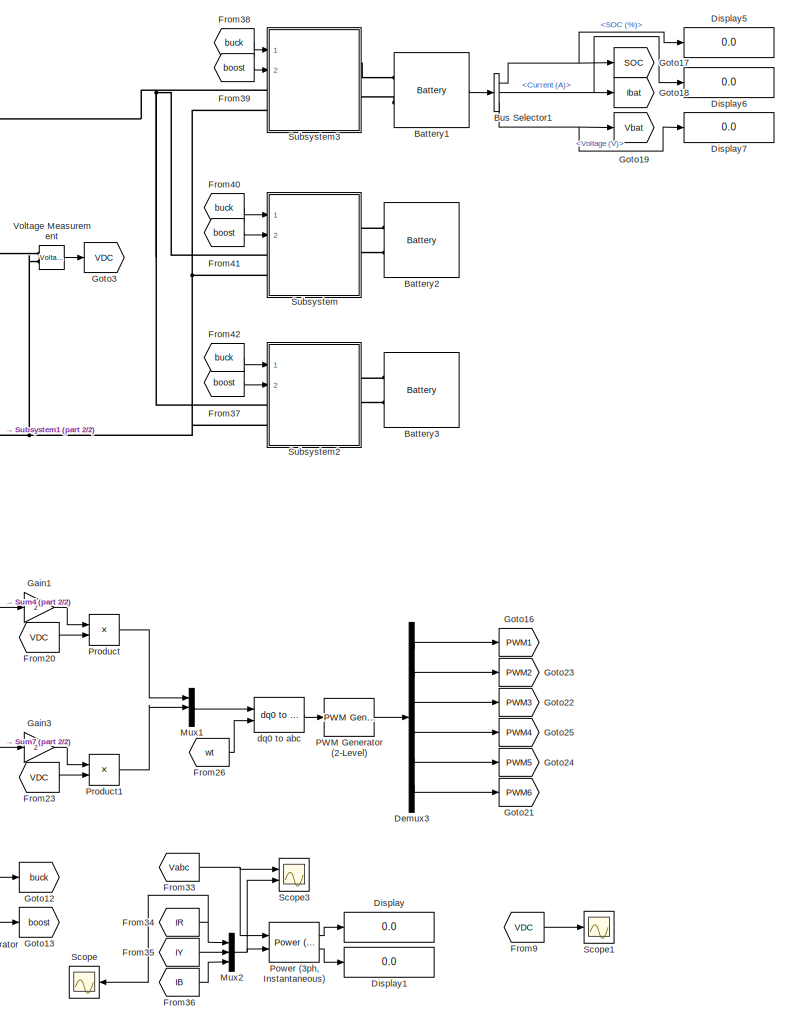
[diagram: root canvas - part 1/2, right side, full height]
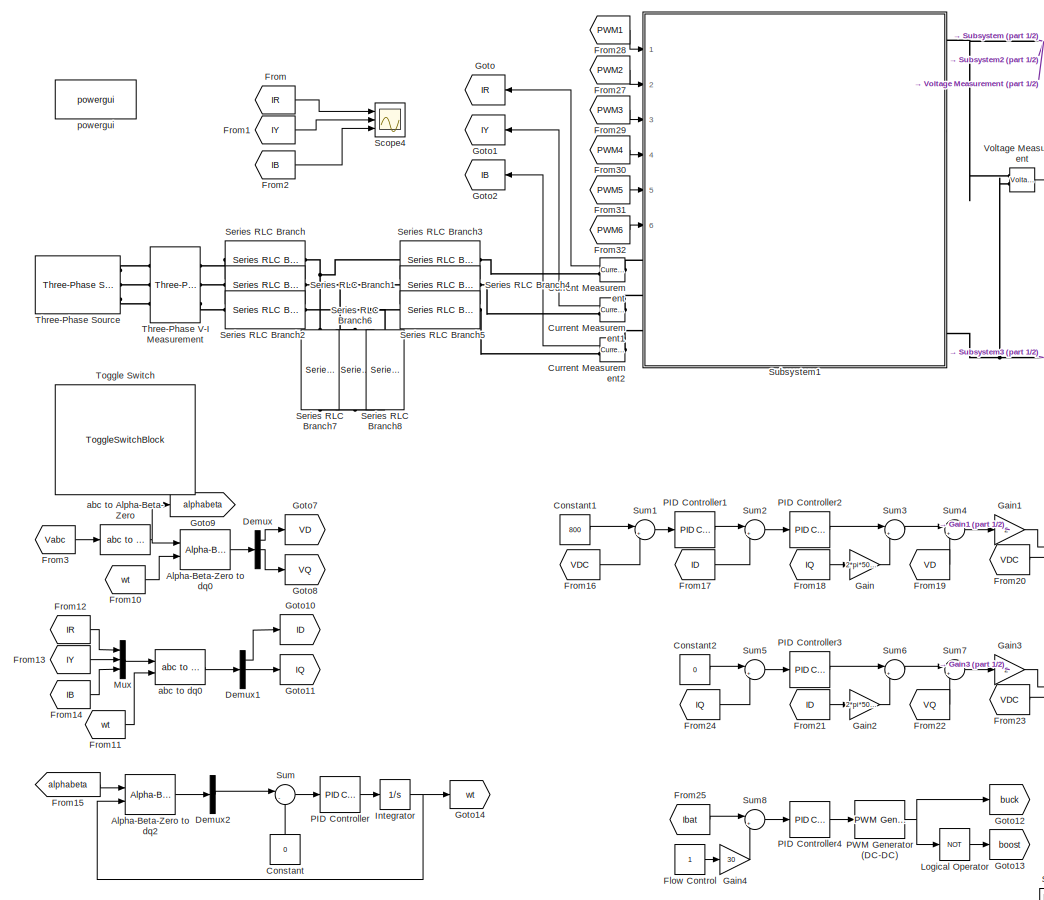
[diagram: root canvas - part 2/2, left side, full height]
MODEL slx_e276f804ef09
KIND model
CONFIG AbsTol = auto
CONFIG EnableMultiTasking = off
CONFIG FixedStep = auto
CONFIG MaxStep = auto
CONFIG MinStep = auto
CONFIG RelTol = 1e-3
CONFIG SampleTimeConstraint = Unconstrained
CONFIG Solver = ode23t
CONFIG SolverName = ode23t
CONFIG StartTime = 0.0
CONFIG StopTime = 1
BLOCK [Reference] Alpha-Beta-Zero to dq0  REF=powerlib_meascontrol/Transformations/Alpha-Beta-Zero
to dq0
  Ports = [2, 1]
  SourceBlock = powerlib_meascontrol/Transformations/Alpha-Beta-Zero\nto dq0
  SourceProductBaseCode = PS
  SourceProductName = Simscape Power Systems
  SourceType = Alpha-Beta-Zero to dq0 Transformation
BLOCK [Reference] Alpha-Beta-Zero to dq2  REF=powerlib_meascontrol/Transformations/Alpha-Beta-Zero
to dq0
  Ports = [2, 1]
  SourceBlock = powerlib_meascontrol/Transformations/Alpha-Beta-Zero\nto dq0
  SourceProductBaseCode = PS
  SourceProductName = Simscape Power Systems
  SourceType = Alpha-Beta-Zero to dq0 Transformation
BLOCK [Reference] Battery1  REF=electricdrivelib/Extra Sources/Battery
  Ports = [0, 1, 0, 0, 0, 2]
  SourceBlock = electricdrivelib/Extra Sources/Battery
  SourceProductBaseCode = PS
  SourceProductName = Simscape Power Systems
  SourceType = Battery
BLOCK [Reference] Battery2  REF=electricdrivelib/Extra Sources/Battery
  Ports = [0, 1, 0, 0, 0, 2]
  SourceBlock = electricdrivelib/Extra Sources/Battery
  SourceProductBaseCode = PS
  SourceProductName = Simscape Power Systems
  SourceType = Battery
BLOCK [Reference] Battery3  REF=electricdrivelib/Extra Sources/Battery
  Ports = [0, 1, 0, 0, 0, 2]
  SourceBlock = electricdrivelib/Extra Sources/Battery
  SourceProductBaseCode = PS
  SourceProductName = Simscape Power Systems
  SourceType = Battery
BLOCK [BusSelector] Bus Selector1
  OutputAsBus = off
  OutputSignals = SOC (%),Current (A),Voltage (V)
  Ports = [1, 3]
BLOCK [Constant] Constant
  Value = 0
BLOCK [Constant] Constant1
  Value = 800
BLOCK [Constant] Constant2
  Value = 0
BLOCK [Reference] Current Measurement  REF=powerlib/Measurements/Current Measurement
  Ports = [0, 1, 0, 0, 0, 1, 1]
  SourceBlock = powerlib/Measurements/Current Measurement
  SourceProductBaseCode = PS
  SourceProductName = Simscape Power Systems
  SourceType = Current Measurement
  UserDataPersistent = on
BLOCK [Reference] Current Measurement1  REF=powerlib/Measurements/Current Measurement
  Ports = [0, 1, 0, 0, 0, 1, 1]
  SourceBlock = powerlib/Measurements/Current Measurement
  SourceProductBaseCode = PS
  SourceProductName = Simscape Power Systems
  SourceType = Current Measurement
  UserDataPersistent = on
BLOCK [Reference] Current Measurement2  REF=powerlib/Measurements/Current Measurement
  Ports = [0, 1, 0, 0, 0, 1, 1]
  SourceBlock = powerlib/Measurements/Current Measurement
  SourceProductBaseCode = PS
  SourceProductName = Simscape Power Systems
  SourceType = Current Measurement
  UserDataPersistent = on
BLOCK [Demux] Demux
  DisplayOption = bar
  Outputs = 3
  Ports = [1, 3]
BLOCK [Demux] Demux1
  DisplayOption = bar
  Outputs = 3
  Ports = [1, 3]
BLOCK [Demux] Demux2
  DisplayOption = bar
  Outputs = 3
  Ports = [1, 3]
BLOCK [Demux] Demux3
  DisplayOption = bar
  Outputs = 6
  Ports = [1, 6]
BLOCK [Display] Display
  Decimation = 1
  Ports = [1]
BLOCK [Display] Display1
  Decimation = 1
  Ports = [1]
BLOCK [Display] Display5
  Decimation = 1
  Ports = [1]
BLOCK [Display] Display6
  Decimation = 1
  Ports = [1]
BLOCK [Display] Display7
  Decimation = 1
  Ports = [1]
BLOCK [Constant] Flow Control
  OutDataTypeStr = fixdt(1,16)
BLOCK [From] From
  GotoTag = IR
BLOCK [From] From1
  GotoTag = IY
BLOCK [From] From10
  GotoTag = wt
BLOCK [From] From11
  GotoTag = wt
BLOCK [From] From12
  GotoTag = IR
BLOCK [From] From13
  GotoTag = IY
BLOCK [From] From14
  GotoTag = IB
BLOCK [From] From15
  GotoTag = alphabeta
BLOCK [From] From16
  GotoTag = VDC
BLOCK [From] From17
  GotoTag = ID
BLOCK [From] From18
  GotoTag = IQ
BLOCK [From] From19
  GotoTag = VD
BLOCK [From] From2
  GotoTag = IB
BLOCK [From] From20
  GotoTag = VDC
BLOCK [From] From21
  GotoTag = ID
BLOCK [From] From22
  GotoTag = VQ
BLOCK [From] From23
  GotoTag = VDC
BLOCK [From] From24
  GotoTag = IQ
BLOCK [From] From25
  GotoTag = Ibat
BLOCK [From] From26
  GotoTag = wt
BLOCK [From] From27
  GotoTag = PWM2
BLOCK [From] From28
  GotoTag = PWM1
BLOCK [From] From29
  GotoTag = PWM3
BLOCK [From] From3
  GotoTag = Vabc
  TagVisibility = global
BLOCK [From] From30
  GotoTag = PWM4
BLOCK [From] From31
  GotoTag = PWM5
BLOCK [From] From32
  GotoTag = PWM6
BLOCK [From] From33
  GotoTag = Vabc
  TagVisibility = global
BLOCK [From] From34
  GotoTag = IR
BLOCK [From] From35
  GotoTag = IY
BLOCK [From] From36
  GotoTag = IB
BLOCK [From] From37
  GotoTag = boost
BLOCK [From] From38
  GotoTag = buck
BLOCK [From] From39
  GotoTag = boost
BLOCK [From] From40
  GotoTag = buck
BLOCK [From] From41
  GotoTag = boost
BLOCK [From] From42
  GotoTag = buck
BLOCK [From] From9
  GotoTag = VDC
BLOCK [Gain] Gain
  Gain = 2*pi*50*10e-3
  OutDataTypeStr = Inherit: Inherit via internal rule
  ParamDataTypeStr = Inherit: Inherit via internal rule
  SaturateOnIntegerOverflow = off
BLOCK [Gain] Gain1
  Gain = 2
  OutDataTypeStr = Inherit: Inherit via internal rule
  ParamDataTypeStr = Inherit: Inherit via internal rule
  SaturateOnIntegerOverflow = off
BLOCK [Gain] Gain2
  Gain = 2*pi*50*10e-3
  OutDataTypeStr = Inherit: Inherit via internal rule
  ParamDataTypeStr = Inherit: Inherit via internal rule
  SaturateOnIntegerOverflow = off
BLOCK [Gain] Gain3
  Gain = 2
  OutDataTypeStr = Inherit: Inherit via internal rule
  ParamDataTypeStr = Inherit: Inherit via internal rule
  SaturateOnIntegerOverflow = off
BLOCK [Gain] Gain4
  Gain = 30
  OutDataTypeStr = Inherit: Inherit via internal rule
  ParamDataTypeStr = Inherit: Inherit via internal rule
  SaturateOnIntegerOverflow = off
BLOCK [Goto] Goto
  GotoTag = IR
BLOCK [Goto] Goto1
  GotoTag = IY
BLOCK [Goto] Goto10
  GotoTag = ID
BLOCK [Goto] Goto11
  GotoTag = IQ
BLOCK [Goto] Goto12
  GotoTag = buck
BLOCK [Goto] Goto13
  GotoTag = boost
BLOCK [Goto] Goto14
  GotoTag = wt
BLOCK [Goto] Goto16
  GotoTag = PWM1
BLOCK [Goto] Goto17
  GotoTag = SOC
BLOCK [Goto] Goto18
  GotoTag = Ibat
BLOCK [Goto] Goto19
  GotoTag = Vbat
BLOCK [Goto] Goto2
  GotoTag = IB
BLOCK [Goto] Goto21
  GotoTag = PWM6
BLOCK [Goto] Goto22
  GotoTag = PWM3
BLOCK [Goto] Goto23
  GotoTag = PWM2
BLOCK [Goto] Goto24
  GotoTag = PWM5
BLOCK [Goto] Goto25
  GotoTag = PWM4
BLOCK [Goto] Goto3
  GotoTag = VDC
BLOCK [Goto] Goto7
  GotoTag = VD
BLOCK [Goto] Goto8
  GotoTag = VQ
BLOCK [Goto] Goto9
  GotoTag = alphabeta
BLOCK [Integrator] Integrator
  Ports = [1, 1]
BLOCK [Logic] Logical Operator
  AllPortsSameDT = off
  Operator = NOT
  OutDataTypeStr = boolean
  Ports = [1, 1]
BLOCK [Mux] Mux
  DisplayOption = bar
  Inputs = 3
  Ports = [3, 1]
BLOCK [Mux] Mux1
  DisplayOption = bar
  Inputs = 3
  Ports = [3, 1]
BLOCK [Mux] Mux2
  DisplayOption = bar
  Inputs = 3
  Ports = [3, 1]
BLOCK [Reference] PID Controller  REF=simulink/Continuous/PID Controller
  Ports = [1, 1]
  SourceBlock = simulink/Continuous/PID Controller
  SourceProductBaseCode = SL
  SourceProductName = Simulink
  SourceType = PID 1dof
BLOCK [Reference] PID Controller1  REF=simulink/Continuous/PID Controller
  Ports = [1, 1]
  SourceBlock = simulink/Continuous/PID Controller
  SourceProductBaseCode = SL
  SourceProductName = Simulink
  SourceType = PID 1dof
BLOCK [Reference] PID Controller2  REF=simulink/Continuous/PID Controller
  Ports = [1, 1]
  SourceBlock = simulink/Continuous/PID Controller
  SourceProductBaseCode = SL
  SourceProductName = Simulink
  SourceType = PID 1dof
BLOCK [Reference] PID Controller3  REF=simulink/Continuous/PID Controller
  Ports = [1, 1]
  SourceBlock = simulink/Continuous/PID Controller
  SourceProductBaseCode = SL
  SourceProductName = Simulink
  SourceType = PID 1dof
BLOCK [Reference] PID Controller4  REF=simulink/Continuous/PID Controller
  Ports = [1, 1]
  SourceBlock = simulink/Continuous/PID Controller
  SourceProductBaseCode = SL
  SourceProductName = Simulink
  SourceType = PID 1dof
BLOCK [Reference] PWM Generator (2-Level)  REF=powerlib_meascontrol/Pulse & Signal
Generators/PWM Generator
(2-Level)
  Ports = [1, 1]
  SourceBlock = powerlib_meascontrol/Pulse & Signal\nGenerators/PWM Generator\n(2-Level)
  SourceProductBaseCode = PS
  SourceProductName = Simscape Power Systems
  SourceType = PWM Generator (2-Level)
BLOCK [Reference] PWM Generator (DC-DC)  REF=powerlib_meascontrol/Pulse & Signal
Generators/PWM Generator
(DC-DC)
  Ports = [1, 1]
  SourceBlock = powerlib_meascontrol/Pulse & Signal\nGenerators/PWM Generator\n(DC-DC)
  SourceProductBaseCode = PS
  SourceProductName = Simscape Power Systems
  SourceType = PWM Generator (DC-DC)
BLOCK [Reference] Power (3ph, Instantaneous)  REF=powerlib_meascontrol/Measurements/Power
(3ph, Instantaneous)
  Ports = [2, 2]
  SourceBlock = powerlib_meascontrol/Measurements/Power\n(3ph, Instantaneous)
  SourceProductBaseCode = PS
  SourceProductName = Simscape Power Systems
  SourceType = Power (3ph, Instantaneous)
BLOCK [Product] Product
  InputSameDT = off
  Inputs = */
  OutDataTypeStr = Inherit: Inherit via internal rule
  Ports = [2, 1]
  RndMeth = Floor
  SaturateOnIntegerOverflow = off
BLOCK [Product] Product1
  InputSameDT = off
  Inputs = */
  OutDataTypeStr = Inherit: Inherit via internal rule
  Ports = [2, 1]
  RndMeth = Floor
  SaturateOnIntegerOverflow = off
BLOCK [Scope] Scope
  Floating = off
  NumInputPorts = 1
  Ports = [1]
  ScopeSpecificationString = Simulink.scopes.TimeScopeBlockCfg('CurrentConfiguration', extmgr.ConfigurationSet(extmgr.Configuration('Core','General UI',true),extmgr.Configuration('Core','Source UI',true),extmgr.Configuration('Sources','WiredSimulink',true,'DataLoggingVariableName','gridCurrent','DataLogging',true,'DataLoggingDecimateData',true,'DataLoggingDecimation','3'),extmgr.Configuration('Visuals','Time Domain',true,'Ser...<+1461ch>
BLOCK [Scope] Scope1
  Floating = off
  NumInputPorts = 1
  Ports = [1]
  ScopeSpecificationString = Simulink.scopes.TimeScopeBlockCfg('CurrentConfiguration', extmgr.ConfigurationSet(extmgr.Configuration('Core','General UI',true,'FigureColor',[1 1 1]),extmgr.Configuration('Core','Source UI',true),extmgr.Configuration('Sources','WiredSimulink',true,'DataLoggingVariableName','ScopeData1'),extmgr.Configuration('Visuals','Time Domain',true,'SerializedDisplays',{struct('MinYLimReal','671.53196','MaxYL...<+1626ch>
BLOCK [Scope] Scope3
  Floating = off
  NumInputPorts = 2
  Ports = [2]
  ScopeSpecificationString = Simulink.scopes.TimeScopeBlockCfg('CurrentConfiguration', extmgr.ConfigurationSet(extmgr.Configuration('Core','General UI',true,'FigureColor',[1 1 1]),extmgr.Configuration('Core','Source UI',true),extmgr.Configuration('Sources','WiredSimulink',true,'DataLoggingVariableName','ScopeData3'),extmgr.Configuration('Visuals','Time Domain',true,'SerializedDisplays',{struct('MinYLimReal','-423.55621','MaxY...<+2868ch>
BLOCK [Scope] Scope4
  Floating = off
  NumInputPorts = 3
  Ports = [3]
  ScopeSpecificationString = Simulink.scopes.TimeScopeBlockCfg('CurrentConfiguration', extmgr.ConfigurationSet(extmgr.Configuration('Core','General UI',true),extmgr.Configuration('Core','Source UI',true),extmgr.Configuration('Sources','WiredSimulink',true,'DataLoggingVariableName','ScopeData4'),extmgr.Configuration('Visuals','Time Domain',true,'SerializedDisplays',{struct('MinYLimReal','-115.16297','MaxYLimReal','99.9646','YL...<+1506ch>
BLOCK [Reference] Series RLC Branch  REF=powerlib/Elements/Series RLC Branch
  Ports = [0, 0, 0, 0, 0, 1, 1]
  SourceBlock = powerlib/Elements/Series RLC Branch
  SourceProductBaseCode = PS
  SourceProductName = Simscape Power Systems
  SourceType = Series RLC Branch
BLOCK [Reference] Series RLC Branch1  REF=powerlib/Elements/Series RLC Branch
  Ports = [0, 0, 0, 0, 0, 1, 1]
  SourceBlock = powerlib/Elements/Series RLC Branch
  SourceProductBaseCode = PS
  SourceProductName = Simscape Power Systems
  SourceType = Series RLC Branch
BLOCK [Reference] Series RLC Branch2  REF=powerlib/Elements/Series RLC Branch
  Ports = [0, 0, 0, 0, 0, 1, 1]
  SourceBlock = powerlib/Elements/Series RLC Branch
  SourceProductBaseCode = PS
  SourceProductName = Simscape Power Systems
  SourceType = Series RLC Branch
BLOCK [Reference] Series RLC Branch3  REF=powerlib/Elements/Series RLC Branch
  Ports = [0, 0, 0, 0, 0, 1, 1]
  SourceBlock = powerlib/Elements/Series RLC Branch
  SourceProductBaseCode = PS
  SourceProductName = Simscape Power Systems
  SourceType = Series RLC Branch
BLOCK [Reference] Series RLC Branch4  REF=powerlib/Elements/Series RLC Branch
  Ports = [0, 0, 0, 0, 0, 1, 1]
  SourceBlock = powerlib/Elements/Series RLC Branch
  SourceProductBaseCode = PS
  SourceProductName = Simscape Power Systems
  SourceType = Series RLC Branch
BLOCK [Reference] Series RLC Branch5  REF=powerlib/Elements/Series RLC Branch
  Ports = [0, 0, 0, 0, 0, 1, 1]
  SourceBlock = powerlib/Elements/Series RLC Branch
  SourceProductBaseCode = PS
  SourceProductName = Simscape Power Systems
  SourceType = Series RLC Branch
BLOCK [Reference] Series RLC Branch6  REF=powerlib/Elements/Series RLC Branch
  Ports = [0, 0, 0, 0, 0, 1, 1]
  SourceBlock = powerlib/Elements/Series RLC Branch
  SourceProductBaseCode = PS
  SourceProductName = Simscape Power Systems
  SourceType = Series RLC Branch
BLOCK [Reference] Series RLC Branch7  REF=powerlib/Elements/Series RLC Branch
  Ports = [0, 0, 0, 0, 0, 1, 1]
  SourceBlock = powerlib/Elements/Series RLC Branch
  SourceProductBaseCode = PS
  SourceProductName = Simscape Power Systems
  SourceType = Series RLC Branch
BLOCK [Reference] Series RLC Branch8  REF=powerlib/Elements/Series RLC Branch
  Ports = [0, 0, 0, 0, 0, 1, 1]
  SourceBlock = powerlib/Elements/Series RLC Branch
  SourceProductBaseCode = PS
  SourceProductName = Simscape Power Systems
  SourceType = Series RLC Branch
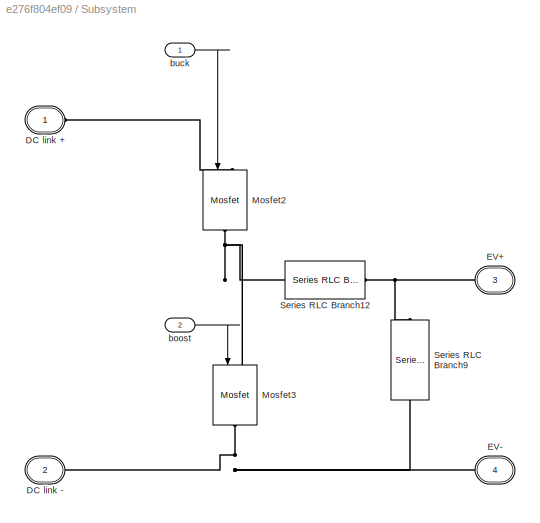
BLOCK [SubSystem] Subsystem
  Ports = [2, 0, 0, 0, 0, 2, 2]
  RequestExecContextInheritance = off
BLOCK [PMIOPort] Subsystem/DC link +
  Side = Left
  Tag = PMCPort
BLOCK [PMIOPort] Subsystem/DC link -
  Port = 2
  Side = Left
  Tag = PMCPort
BLOCK [PMIOPort] Subsystem/EV+
  Port = 3
  Side = Right
  Tag = PMCPort
BLOCK [PMIOPort] Subsystem/EV-
  Port = 4
  Side = Right
  Tag = PMCPort
BLOCK [Reference] Subsystem/Mosfet2  REF=powerlib/Power
Electronics/Mosfet
  Ports = [1, 0, 0, 0, 0, 1, 1]
  SourceBlock = powerlib/Power\nElectronics/Mosfet
  SourceProductBaseCode = PS
  SourceProductName = Simscape Power Systems
  SourceType = Mosfet
BLOCK [Reference] Subsystem/Mosfet3  REF=powerlib/Power
Electronics/Mosfet
  Ports = [1, 0, 0, 0, 0, 1, 1]
  SourceBlock = powerlib/Power\nElectronics/Mosfet
  SourceProductBaseCode = PS
  SourceProductName = Simscape Power Systems
  SourceType = Mosfet
BLOCK [Reference] Subsystem/Series RLC Branch12  REF=powerlib/Elements/Series RLC Branch
  Ports = [0, 0, 0, 0, 0, 1, 1]
  SourceBlock = powerlib/Elements/Series RLC Branch
  SourceProductBaseCode = PS
  SourceProductName = Simscape Power Systems
  SourceType = Series RLC Branch
BLOCK [Reference] Subsystem/Series RLC Branch9  REF=powerlib/Elements/Series RLC Branch
  Ports = [0, 0, 0, 0, 0, 1, 1]
  SourceBlock = powerlib/Elements/Series RLC Branch
  SourceProductBaseCode = PS
  SourceProductName = Simscape Power Systems
  SourceType = Series RLC Branch
BLOCK [Inport] Subsystem/boost
  IconDisplay = Port number
  Port = 2
BLOCK [Inport] Subsystem/buck
  IconDisplay = Port number
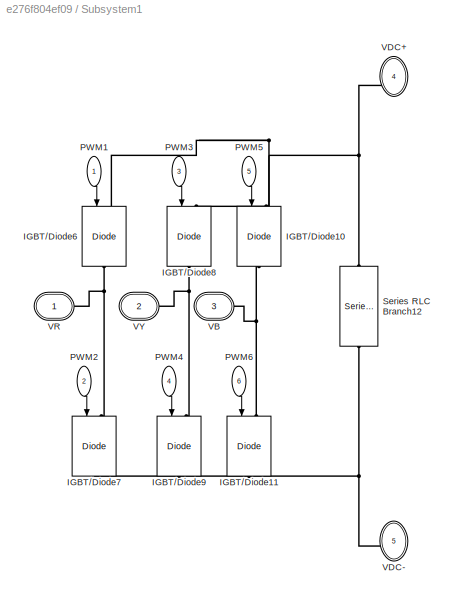
BLOCK [SubSystem] Subsystem1
  Ports = [6, 0, 0, 0, 0, 3, 2]
  RequestExecContextInheritance = off
BLOCK [Reference] Subsystem1/IGBT//Diode10  REF=powerlib/Power
Electronics/IGBT//Diode
  Ports = [1, 0, 0, 0, 0, 1, 1]
  SourceBlock = powerlib/Power\nElectronics/IGBT//Diode
  SourceProductBaseCode = PS
  SourceProductName = Simscape Power Systems
  SourceType = IGBT/Diode
BLOCK [Reference] Subsystem1/IGBT//Diode11  REF=powerlib/Power
Electronics/IGBT//Diode
  Ports = [1, 0, 0, 0, 0, 1, 1]
  SourceBlock = powerlib/Power\nElectronics/IGBT//Diode
  SourceProductBaseCode = PS
  SourceProductName = Simscape Power Systems
  SourceType = IGBT/Diode
BLOCK [Reference] Subsystem1/IGBT//Diode6  REF=powerlib/Power
Electronics/IGBT//Diode
  Ports = [1, 0, 0, 0, 0, 1, 1]
  SourceBlock = powerlib/Power\nElectronics/IGBT//Diode
  SourceProductBaseCode = PS
  SourceProductName = Simscape Power Systems
  SourceType = IGBT/Diode
BLOCK [Reference] Subsystem1/IGBT//Diode7  REF=powerlib/Power
Electronics/IGBT//Diode
  Ports = [1, 0, 0, 0, 0, 1, 1]
  SourceBlock = powerlib/Power\nElectronics/IGBT//Diode
  SourceProductBaseCode = PS
  SourceProductName = Simscape Power Systems
  SourceType = IGBT/Diode
BLOCK [Reference] Subsystem1/IGBT//Diode8  REF=powerlib/Power
Electronics/IGBT//Diode
  Ports = [1, 0, 0, 0, 0, 1, 1]
  SourceBlock = powerlib/Power\nElectronics/IGBT//Diode
  SourceProductBaseCode = PS
  SourceProductName = Simscape Power Systems
  SourceType = IGBT/Diode
BLOCK [Reference] Subsystem1/IGBT//Diode9  REF=powerlib/Power
Electronics/IGBT//Diode
  Ports = [1, 0, 0, 0, 0, 1, 1]
  SourceBlock = powerlib/Power\nElectronics/IGBT//Diode
  SourceProductBaseCode = PS
  SourceProductName = Simscape Power Systems
  SourceType = IGBT/Diode
BLOCK [Inport] Subsystem1/PWM1
  IconDisplay = Port number
BLOCK [Inport] Subsystem1/PWM2
  IconDisplay = Port number
  Port = 2
BLOCK [Inport] Subsystem1/PWM3
  IconDisplay = Port number
  Port = 3
BLOCK [Inport] Subsystem1/PWM4
  IconDisplay = Port number
  Port = 4
BLOCK [Inport] Subsystem1/PWM5
  IconDisplay = Port number
  Port = 5
BLOCK [Inport] Subsystem1/PWM6
  IconDisplay = Port number
  Port = 6
BLOCK [Reference] Subsystem1/Series RLC Branch12  REF=powerlib/Elements/Series RLC Branch
  Ports = [0, 0, 0, 0, 0, 1, 1]
  SourceBlock = powerlib/Elements/Series RLC Branch
  SourceProductBaseCode = PS
  SourceProductName = Simscape Power Systems
  SourceType = Series RLC Branch
BLOCK [PMIOPort] Subsystem1/VB
  Port = 3
  Side = Left
  Tag = PMCPort
BLOCK [PMIOPort] Subsystem1/VDC+
  Port = 4
  Side = Right
  Tag = PMCPort
BLOCK [PMIOPort] Subsystem1/VDC-
  Port = 5
  Side = Right
  Tag = PMCPort
BLOCK [PMIOPort] Subsystem1/VR
  Side = Left
  Tag = PMCPort
BLOCK [PMIOPort] Subsystem1/VY
  Port = 2
  Side = Left
  Tag = PMCPort
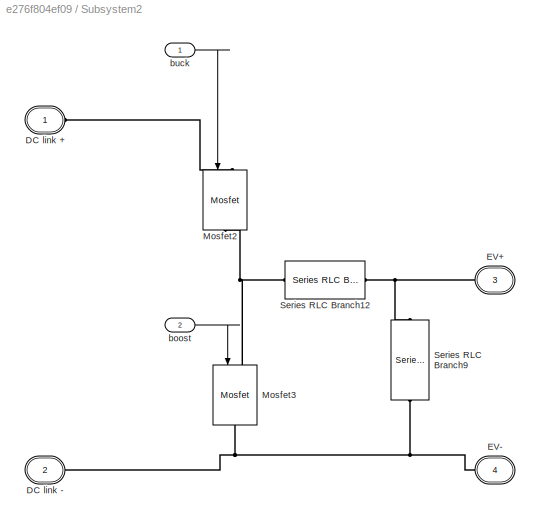
BLOCK [SubSystem] Subsystem2
  Ports = [2, 0, 0, 0, 0, 2, 2]
  RequestExecContextInheritance = off
BLOCK [PMIOPort] Subsystem2/DC link +
  Side = Left
  Tag = PMCPort
BLOCK [PMIOPort] Subsystem2/DC link -
  Port = 2
  Side = Left
  Tag = PMCPort
BLOCK [PMIOPort] Subsystem2/EV+
  Port = 3
  Side = Right
  Tag = PMCPort
BLOCK [PMIOPort] Subsystem2/EV-
  Port = 4
  Side = Right
  Tag = PMCPort
BLOCK [Reference] Subsystem2/Mosfet2  REF=powerlib/Power
Electronics/Mosfet
  Ports = [1, 0, 0, 0, 0, 1, 1]
  SourceBlock = powerlib/Power\nElectronics/Mosfet
  SourceProductBaseCode = PS
  SourceProductName = Simscape Power Systems
  SourceType = Mosfet
BLOCK [Reference] Subsystem2/Mosfet3  REF=powerlib/Power
Electronics/Mosfet
  Ports = [1, 0, 0, 0, 0, 1, 1]
  SourceBlock = powerlib/Power\nElectronics/Mosfet
  SourceProductBaseCode = PS
  SourceProductName = Simscape Power Systems
  SourceType = Mosfet
BLOCK [Reference] Subsystem2/Series RLC Branch12  REF=powerlib/Elements/Series RLC Branch
  Ports = [0, 0, 0, 0, 0, 1, 1]
  SourceBlock = powerlib/Elements/Series RLC Branch
  SourceProductBaseCode = PS
  SourceProductName = Simscape Power Systems
  SourceType = Series RLC Branch
BLOCK [Reference] Subsystem2/Series RLC Branch9  REF=powerlib/Elements/Series RLC Branch
  Ports = [0, 0, 0, 0, 0, 1, 1]
  SourceBlock = powerlib/Elements/Series RLC Branch
  SourceProductBaseCode = PS
  SourceProductName = Simscape Power Systems
  SourceType = Series RLC Branch
BLOCK [Inport] Subsystem2/boost
  IconDisplay = Port number
  Port = 2
BLOCK [Inport] Subsystem2/buck
  IconDisplay = Port number
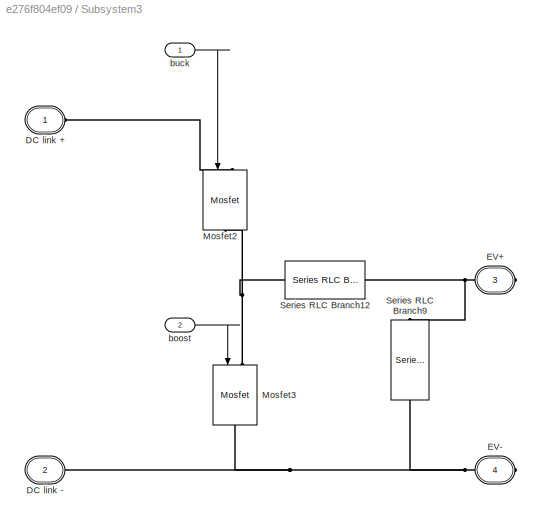
BLOCK [SubSystem] Subsystem3
  Ports = [2, 0, 0, 0, 0, 2, 2]
  RequestExecContextInheritance = off
BLOCK [PMIOPort] Subsystem3/DC link +
  Side = Left
  Tag = PMCPort
BLOCK [PMIOPort] Subsystem3/DC link -
  Port = 2
  Side = Left
  Tag = PMCPort
BLOCK [PMIOPort] Subsystem3/EV+
  Port = 3
  Side = Right
  Tag = PMCPort
BLOCK [PMIOPort] Subsystem3/EV-
  Port = 4
  Side = Right
  Tag = PMCPort
BLOCK [Reference] Subsystem3/Mosfet2  REF=powerlib/Power
Electronics/Mosfet
  Ports = [1, 0, 0, 0, 0, 1, 1]
  SourceBlock = powerlib/Power\nElectronics/Mosfet
  SourceProductBaseCode = PS
  SourceProductName = Simscape Power Systems
  SourceType = Mosfet
BLOCK [Reference] Subsystem3/Mosfet3  REF=powerlib/Power
Electronics/Mosfet
  Ports = [1, 0, 0, 0, 0, 1, 1]
  SourceBlock = powerlib/Power\nElectronics/Mosfet
  SourceProductBaseCode = PS
  SourceProductName = Simscape Power Systems
  SourceType = Mosfet
BLOCK [Reference] Subsystem3/Series RLC Branch12  REF=powerlib/Elements/Series RLC Branch
  Ports = [0, 0, 0, 0, 0, 1, 1]
  SourceBlock = powerlib/Elements/Series RLC Branch
  SourceProductBaseCode = PS
  SourceProductName = Simscape Power Systems
  SourceType = Series RLC Branch
BLOCK [Reference] Subsystem3/Series RLC Branch9  REF=powerlib/Elements/Series RLC Branch
  Ports = [0, 0, 0, 0, 0, 1, 1]
  SourceBlock = powerlib/Elements/Series RLC Branch
  SourceProductBaseCode = PS
  SourceProductName = Simscape Power Systems
  SourceType = Series RLC Branch
BLOCK [Inport] Subsystem3/boost
  IconDisplay = Port number
  Port = 2
BLOCK [Inport] Subsystem3/buck
  IconDisplay = Port number
BLOCK [Sum] Sum
  IconShape = round
  InputSameDT = off
  Inputs = |-+
  OutDataTypeStr = Inherit: Inherit via internal rule
  Ports = [2, 1]
  SaturateOnIntegerOverflow = off
BLOCK [Sum] Sum1
  IconShape = round
  InputSameDT = off
  Inputs = |+-
  OutDataTypeStr = Inherit: Inherit via internal rule
  Ports = [2, 1]
  SaturateOnIntegerOverflow = off
BLOCK [Sum] Sum2
  IconShape = round
  InputSameDT = off
  Inputs = |+-
  OutDataTypeStr = Inherit: Inherit via internal rule
  Ports = [2, 1]
  SaturateOnIntegerOverflow = off
BLOCK [Sum] Sum3
  IconShape = round
  InputSameDT = off
  Inputs = |++
  OutDataTypeStr = Inherit: Inherit via internal rule
  Ports = [2, 1]
  SaturateOnIntegerOverflow = off
BLOCK [Sum] Sum4
  IconShape = round
  InputSameDT = off
  Inputs = |++
  OutDataTypeStr = Inherit: Inherit via internal rule
  Ports = [2, 1]
  SaturateOnIntegerOverflow = off
BLOCK [Sum] Sum5
  IconShape = round
  InputSameDT = off
  Inputs = |+-
  OutDataTypeStr = Inherit: Inherit via internal rule
  Ports = [2, 1]
  SaturateOnIntegerOverflow = off
BLOCK [Sum] Sum6
  IconShape = round
  InputSameDT = off
  Inputs = |+-
  OutDataTypeStr = Inherit: Inherit via internal rule
  Ports = [2, 1]
  SaturateOnIntegerOverflow = off
BLOCK [Sum] Sum7
  IconShape = round
  InputSameDT = off
  Inputs = |++
  OutDataTypeStr = Inherit: Inherit via internal rule
  Ports = [2, 1]
  SaturateOnIntegerOverflow = off
BLOCK [Sum] Sum8
  IconShape = round
  InputSameDT = off
  Inputs = |+-
  OutDataTypeStr = Inherit: Inherit via internal rule
  Ports = [2, 1]
  SaturateOnIntegerOverflow = off
BLOCK [Reference] Three-Phase Source  REF=powerlib/Electrical
Sources/Three-Phase Source
  Ports = [0, 0, 0, 0, 0, 0, 3]
  SourceBlock = powerlib/Electrical\nSources/Three-Phase Source
  SourceProductBaseCode = PS
  SourceProductName = Simscape Power Systems
  SourceType = Three-Phase Source
BLOCK [Reference] Three-Phase V-I Measurement  REF=powerlib/Measurements/Three-Phase
V-I Measurement
  Ports = [0, 0, 0, 0, 0, 3, 3]
  SourceBlock = powerlib/Measurements/Three-Phase\nV-I Measurement
  SourceProductBaseCode = PS
  SourceProductName = Simscape Power Systems
  SourceType = Three-Phase VI Measurement
BLOCK [ToggleSwitchBlock] Toggle Switch
  WebBlockId = 299
BLOCK [Reference] Voltage Measurement  REF=powerlib/Measurements/Voltage Measurement
  Ports = [0, 1, 0, 0, 0, 2]
  SourceBlock = powerlib/Measurements/Voltage Measurement
  SourceProductBaseCode = PS
  SourceProductName = Simscape Power Systems
  SourceType = Voltage Measurement
  UserDataPersistent = on
BLOCK [Reference] abc to Alpha-Beta-Zero  REF=powerlib_meascontrol/Transformations/abc to
Alpha-Beta-Zero
  Ports = [1, 1]
  SourceBlock = powerlib_meascontrol/Transformations/abc to\nAlpha-Beta-Zero
  SourceProductBaseCode = PS
  SourceProductName = Simscape Power Systems
  SourceType = abc to Alpha-Beta-Zero Transformation
BLOCK [Reference] abc to dq0  REF=powerlib_meascontrol/Transformations/abc to dq0
  Ports = [2, 1]
  SourceBlock = powerlib_meascontrol/Transformations/abc to dq0
  SourceProductBaseCode = PS
  SourceProductName = Simscape Power Systems
  SourceType = abc to dq0 Transformation
BLOCK [Reference] dq0 to abc  REF=powerlib_meascontrol/Transformations/dq0 to abc
  Ports = [2, 1]
  SourceBlock = powerlib_meascontrol/Transformations/dq0 to abc
  SourceProductBaseCode = PS
  SourceProductName = Simscape Power Systems
  SourceType = dq0 to abc Transformation
BLOCK [Reference] powergui  REF=powerlib/powergui
  Ports = []
  Priority = 1
  SourceBlock = powerlib/powergui
  SourceProductBaseCode = PS
  SourceProductName = Simscape Power Systems
  SourceType = PSB option menu block
LINE Alpha-Beta-Zero to dq0:1 -> Demux:1
LINE Alpha-Beta-Zero to dq2:1 -> Demux2:1
LINE Battery1:1 -> Bus Selector1:1
NET Bus Selector1:1 -> Display5:1, Goto17:1
NET Bus Selector1:2 -> Display6:1, Goto18:1
NET Bus Selector1:3 -> Display7:1, Goto19:1
LINE Constant1:1 -> Sum1:1
LINE Constant2:1 -> Sum5:1
LINE Constant:1 -> Sum:2
LINE Current Measurement1:1 -> Goto1:1
LINE Current Measurement2:1 -> Goto2:1
LINE Current Measurement:1 -> Goto:1
LINE Demux1:1 -> Goto10:1
LINE Demux1:2 -> Goto11:1
LINE Demux2:2 -> Sum:1
LINE Demux3:1 -> Goto16:1
LINE Demux3:2 -> Goto23:1
LINE Demux3:3 -> Goto22:1
LINE Demux3:4 -> Goto25:1
LINE Demux3:5 -> Goto24:1
LINE Demux3:6 -> Goto21:1
LINE Demux:1 -> Goto7:1
LINE Demux:2 -> Goto8:1
LINE Flow Control:1 -> Gain4:1
LINE From10:1 -> Alpha-Beta-Zero to dq0:2
LINE From11:1 -> abc to dq0:2
LINE From12:1 -> Mux:1
LINE From13:1 -> Mux:2
LINE From14:1 -> Mux:3
LINE From15:1 -> Alpha-Beta-Zero to dq2:1
LINE From16:1 -> Sum1:2
LINE From17:1 -> Sum2:2
LINE From18:1 -> Gain:1
LINE From19:1 -> Sum4:2
LINE From1:1 -> Scope4:2
LINE From20:1 -> Product:2
LINE From21:1 -> Gain2:1
LINE From22:1 -> Sum7:2
LINE From23:1 -> Product1:2
LINE From24:1 -> Sum5:2
LINE From25:1 -> Sum8:1
LINE From26:1 -> dq0 to abc:2
LINE From27:1 -> Subsystem1:2
LINE From28:1 -> Subsystem1:1
LINE From29:1 -> Subsystem1:3
LINE From2:1 -> Scope4:3
LINE From30:1 -> Subsystem1:4
LINE From31:1 -> Subsystem1:5
LINE From32:1 -> Subsystem1:6
NET From33:1 -> Power (3ph, Instantaneous):1, Scope3:1
NET From34:1 -> Mux2:1, Scope:1
LINE From35:1 -> Mux2:2
LINE From36:1 -> Mux2:3
LINE From37:1 -> Subsystem2:2
LINE From38:1 -> Subsystem3:1
LINE From39:1 -> Subsystem3:2
LINE From3:1 -> abc to Alpha-Beta-Zero:1
LINE From40:1 -> Subsystem:1
LINE From41:1 -> Subsystem:2
LINE From42:1 -> Subsystem2:1
LINE From9:1 -> Scope1:1
LINE From:1 -> Scope4:1
LINE Gain1:1 -> Product:1
LINE Gain2:1 -> Sum6:2
LINE Gain3:1 -> Product1:1
LINE Gain4:1 -> Sum8:2
LINE Gain:1 -> Sum3:2
NET Integrator:1 -> Alpha-Beta-Zero to dq2:2, Goto14:1
LINE Logical Operator:1 -> Goto13:1
LINE Mux1:1 -> dq0 to abc:1
NET Mux2:1 -> Power (3ph, Instantaneous):2, Scope3:2
LINE Mux:1 -> abc to dq0:1
LINE PID Controller1:1 -> Sum2:1
LINE PID Controller2:1 -> Sum3:1
LINE PID Controller3:1 -> Sum6:1
LINE PID Controller4:1 -> PWM Generator (DC-DC):1
LINE PID Controller:1 -> Integrator:1
LINE PWM Generator (2-Level):1 -> Demux3:1
NET PWM Generator (DC-DC):1 -> Goto12:1, Logical Operator:1
LINE Power (3ph, Instantaneous):1 -> Display:1
LINE Power (3ph, Instantaneous):2 -> Display1:1
LINE Product1:1 -> Mux1:2
LINE Product:1 -> Mux1:1
LINE Subsystem/boost:1 -> Subsystem/Mosfet3:1
LINE Subsystem/buck:1 -> Subsystem/Mosfet2:1
LINE Subsystem1/PWM1:1 -> Subsystem1/IGBT//Diode6:1
LINE Subsystem1/PWM2:1 -> Subsystem1/IGBT//Diode7:1
LINE Subsystem1/PWM3:1 -> Subsystem1/IGBT//Diode8:1
LINE Subsystem1/PWM4:1 -> Subsystem1/IGBT//Diode9:1
LINE Subsystem1/PWM5:1 -> Subsystem1/IGBT//Diode10:1
LINE Subsystem1/PWM6:1 -> Subsystem1/IGBT//Diode11:1
LINE Subsystem2/boost:1 -> Subsystem2/Mosfet3:1
LINE Subsystem2/buck:1 -> Subsystem2/Mosfet2:1
LINE Subsystem3/boost:1 -> Subsystem3/Mosfet3:1
LINE Subsystem3/buck:1 -> Subsystem3/Mosfet2:1
LINE Sum1:1 -> PID Controller1:1
LINE Sum2:1 -> PID Controller2:1
LINE Sum3:1 -> Sum4:1
LINE Sum4:1 -> Gain1:1
LINE Sum5:1 -> PID Controller3:1
LINE Sum6:1 -> Sum7:1
LINE Sum7:1 -> Gain3:1
LINE Sum8:1 -> PID Controller4:1
LINE Sum:1 -> PID Controller:1
LINE Voltage Measurement:1 -> Goto3:1
NET abc to Alpha-Beta-Zero:1 -> Alpha-Beta-Zero to dq0:1, Goto9:1
LINE abc to dq0:1 -> Demux1:1
LINE dq0 to abc:1 -> PWM Generator (2-Level):1
PLINE Battery1:LConn1 -- Subsystem3:RConn1
PLINE Battery1:LConn2 -- Subsystem3:RConn2
PLINE Battery2:LConn1 -- Subsystem:RConn1
PLINE Battery2:LConn2 -- Subsystem:RConn2
PLINE Battery3:LConn1 -- Subsystem2:RConn1
PLINE Battery3:LConn2 -- Subsystem2:RConn2
PLINE Current Measurement1:LConn1 -- Subsystem1:LConn2
PLINE Current Measurement1:RConn1 -- Series RLC Branch4:RConn1
PLINE Current Measurement2:LConn1 -- Subsystem1:LConn3
PLINE Current Measurement2:RConn1 -- Series RLC Branch5:RConn1
PLINE Current Measurement:LConn1 -- Subsystem1:LConn1
PLINE Current Measurement:RConn1 -- Series RLC Branch3:RConn1
PLINE Series RLC Branch1:LConn1 -- Three-Phase V-I Measurement:RConn2
PNET net1: Series RLC Branch1:RConn1 -- Series RLC Branch4:LConn1 -- Series RLC Branch6:LConn1
PLINE Series RLC Branch2:LConn1 -- Three-Phase V-I Measurement:RConn3
PNET net2: Series RLC Branch2:RConn1 -- Series RLC Branch5:LConn1 -- Series RLC Branch8:LConn1
PNET net3: Series RLC Branch3:LConn1 -- Series RLC Branch7:LConn1 -- Series RLC Branch:RConn1
PNET net4: Series RLC Branch6:RConn1 -- Series RLC Branch7:RConn1 -- Series RLC Branch8:RConn1
PLINE Series RLC Branch:LConn1 -- Three-Phase V-I Measurement:RConn1
PLINE Subsystem/DC link +:RConn1 -- Subsystem/Mosfet2:LConn1
PNET net5: Subsystem/DC link -:RConn1 -- Subsystem/EV-:RConn1 -- Subsystem/Mosfet3:RConn1 -- Subsystem/Series RLC Branch9:RConn1
PNET net6: Subsystem/EV+:RConn1 -- Subsystem/Series RLC Branch12:RConn1 -- Subsystem/Series RLC Branch9:LConn1
PNET net7: Subsystem/Mosfet2:RConn1 -- Subsystem/Mosfet3:LConn1 -- Subsystem/Series RLC Branch12:LConn1
PNET net8: Subsystem1/IGBT//Diode10:LConn1 -- Subsystem1/IGBT//Diode6:LConn1 -- Subsystem1/IGBT//Diode8:LConn1 -- Subsystem1/Series RLC Branch12:LConn1 -- Subsystem1/VDC+:RConn1
PNET net9: Subsystem1/IGBT//Diode10:RConn1 -- Subsystem1/IGBT//Diode11:LConn1 -- Subsystem1/VB:RConn1
PNET net10: Subsystem1/IGBT//Diode11:RConn1 -- Subsystem1/IGBT//Diode7:RConn1 -- Subsystem1/IGBT//Diode9:RConn1 -- Subsystem1/Series RLC Branch12:RConn1 -- Subsystem1/VDC-:RConn1
PNET net11: Subsystem1/IGBT//Diode6:RConn1 -- Subsystem1/IGBT//Diode7:LConn1 -- Subsystem1/VR:RConn1
PNET net12: Subsystem1/IGBT//Diode8:RConn1 -- Subsystem1/IGBT//Diode9:LConn1 -- Subsystem1/VY:RConn1
PNET net13: Subsystem1:RConn1 -- Subsystem2:LConn1 -- Subsystem3:LConn1 -- Subsystem:LConn1 -- Voltage Measurement:LConn1
PNET net14: Subsystem1:RConn2 -- Subsystem2:LConn2 -- Subsystem3:LConn2 -- Subsystem:LConn2 -- Voltage Measurement:LConn2
PLINE Subsystem2/DC link +:RConn1 -- Subsystem2/Mosfet2:LConn1
PNET net15: Subsystem2/DC link -:RConn1 -- Subsystem2/EV-:RConn1 -- Subsystem2/Mosfet3:RConn1 -- Subsystem2/Series RLC Branch9:RConn1
PNET net16: Subsystem2/EV+:RConn1 -- Subsystem2/Series RLC Branch12:RConn1 -- Subsystem2/Series RLC Branch9:LConn1
PNET net17: Subsystem2/Mosfet2:RConn1 -- Subsystem2/Mosfet3:LConn1 -- Subsystem2/Series RLC Branch12:LConn1
PLINE Subsystem3/DC link +:RConn1 -- Subsystem3/Mosfet2:LConn1
PNET net18: Subsystem3/DC link -:RConn1 -- Subsystem3/EV-:RConn1 -- Subsystem3/Mosfet3:RConn1 -- Subsystem3/Series RLC Branch9:RConn1
PNET net19: Subsystem3/EV+:RConn1 -- Subsystem3/Series RLC Branch12:RConn1 -- Subsystem3/Series RLC Branch9:LConn1
PNET net20: Subsystem3/Mosfet2:RConn1 -- Subsystem3/Mosfet3:LConn1 -- Subsystem3/Series RLC Branch12:LConn1
PLINE Three-Phase Source:RConn1 -- Three-Phase V-I Measurement:LConn1
PLINE Three-Phase Source:RConn2 -- Three-Phase V-I Measurement:LConn2
PLINE Three-Phase Source:RConn3 -- Three-Phase V-I Measurement:LConn3
note: NET lines group one-source signal fan-out (src -> all destinations, sorted); 1:1 wires keep LINE; PNET lines group multi-terminal physical nets as a canonical sorted terminal list (undirected conserving connections); 2-terminal nets keep the pairwise PLINE form
